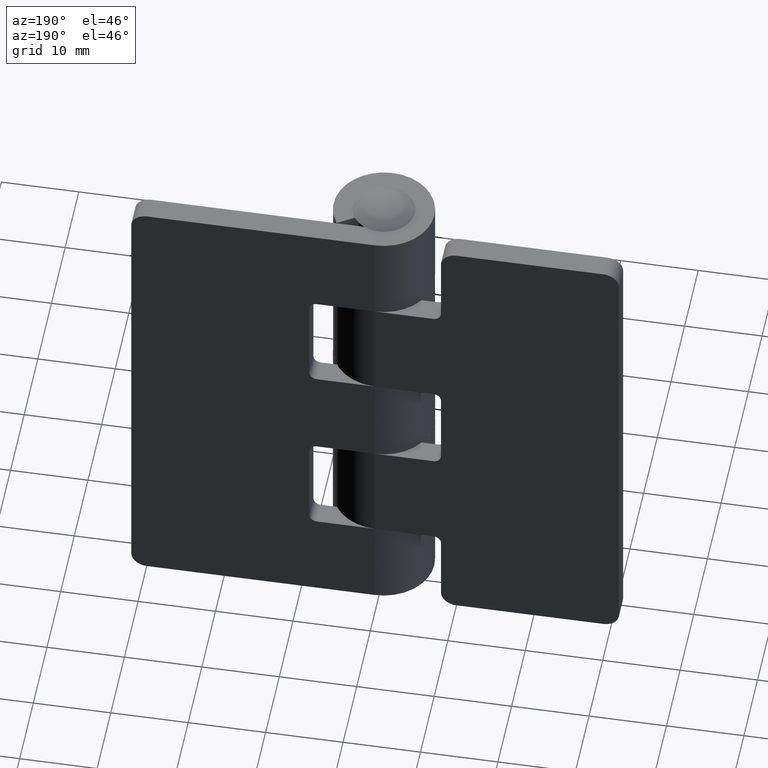
[diagram: clean part render]
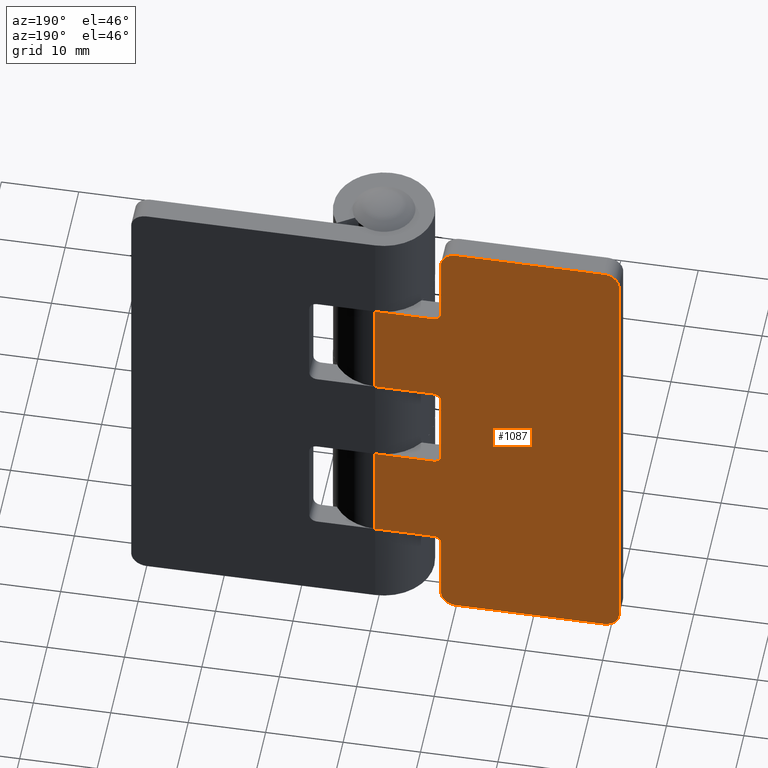
[diagram: same view with one face highlighted and labeled with its STEP entity id]
A machine part, auxiliary view. The second image highlights one B-rep face of the part: STEP entity #1087.
In plain terms, the highlighted face is a freeform B-spline surface patch.
Its self-contained STEP definition (entity closure, byte-faithful):
#77=CARTESIAN_POINT('',(-8.500008000000110,6.499999000000000,37.150001999999887));
#78=VERTEX_POINT('',#77);
#84=CARTESIAN_POINT('',(-7.500008000000110,6.499999000000000,38.150001999999901));
#85=VERTEX_POINT('',#84);
#86=CARTESIAN_POINT('',(-7.500008000000110,6.499999000000000,38.150001999999901));
#87=CARTESIAN_POINT('',(-8.500008000000111,6.499998999999999,38.150001999999894));
#88=CARTESIAN_POINT('',(-8.500008000000111,6.499999000000000,37.150001999999887));
#96=(BOUNDED_CURVE()B_SPLINE_CURVE(2,(#86,#87,#88),.UNSPECIFIED.,.F.,.U.)CURVE()GEOMETRIC_REPRESENTATION_ITEM()QUASI_UNIFORM_CURVE()RATIONAL_B_SPLINE_CURVE((1.0,0.707106781186548,1.0))REPRESENTATION_ITEM(''));
#97=EDGE_CURVE('',#85,#78,#96,.T.);
#138=CARTESIAN_POINT('',(-7.500008000000110,6.499999000000000,25.849999000000000));
#139=VERTEX_POINT('',#138);
#145=CARTESIAN_POINT('',(-8.500008000000110,6.499999000000000,26.849999000000000));
#146=VERTEX_POINT('',#145);
#147=CARTESIAN_POINT('',(-8.500008000000111,6.499999000000000,26.849999000000000));
#148=CARTESIAN_POINT('',(-8.500008000000111,6.499998999999999,25.849998999999993));
#149=CARTESIAN_POINT('',(-7.500008000000110,6.499999000000000,25.849999000000000));
#157=(BOUNDED_CURVE()B_SPLINE_CURVE(2,(#147,#148,#149),.UNSPECIFIED.,.F.,.U.)CURVE()GEOMETRIC_REPRESENTATION_ITEM()QUASI_UNIFORM_CURVE()RATIONAL_B_SPLINE_CURVE((1.0,0.707106781186548,1.0))REPRESENTATION_ITEM(''));
#158=EDGE_CURVE('',#146,#139,#157,.T.);
#199=CARTESIAN_POINT('',(-8.500008000000110,6.499999000000000,11.100006000000000));
#200=VERTEX_POINT('',#199);
#206=CARTESIAN_POINT('',(-7.500008000000110,6.499999000000000,12.100006000000000));
#207=VERTEX_POINT('',#206);
#208=CARTESIAN_POINT('',(-7.500008000000110,6.499999000000000,12.100006000000000));
#209=CARTESIAN_POINT('',(-8.500008000000111,6.499998999999999,12.100006000000000));
#210=CARTESIAN_POINT('',(-8.500008000000111,6.499999000000000,11.100006000000000));
#218=(BOUNDED_CURVE()B_SPLINE_CURVE(2,(#208,#209,#210),.UNSPECIFIED.,.F.,.U.)CURVE()GEOMETRIC_REPRESENTATION_ITEM()QUASI_UNIFORM_CURVE()RATIONAL_B_SPLINE_CURVE((1.0,0.707106781186548,1.0))REPRESENTATION_ITEM(''));
#219=EDGE_CURVE('',#207,#200,#218,.T.);
#260=CARTESIAN_POINT('',(-7.500008000000110,6.499999000000000,51.900002000000100));
#261=VERTEX_POINT('',#260);
#267=CARTESIAN_POINT('',(-8.500008000000110,6.499999000000000,52.900002000000100));
#268=VERTEX_POINT('',#267);
#269=CARTESIAN_POINT('',(-8.500008000000111,6.499999000000000,52.900002000000100));
#270=CARTESIAN_POINT('',(-8.500008000000111,6.499998999999999,51.900002000000093));
#271=CARTESIAN_POINT('',(-7.500008000000110,6.499999000000000,51.900002000000100));
#279=(BOUNDED_CURVE()B_SPLINE_CURVE(2,(#269,#270,#271),.UNSPECIFIED.,.F.,.U.)CURVE()GEOMETRIC_REPRESENTATION_ITEM()QUASI_UNIFORM_CURVE()RATIONAL_B_SPLINE_CURVE((1.0,0.707106781186548,1.0))REPRESENTATION_ITEM(''));
#280=EDGE_CURVE('',#268,#261,#279,.T.);
#321=CARTESIAN_POINT('',(-8.500008000000110,6.499999000000000,62.000008000000101));
#322=VERTEX_POINT('',#321);
#328=CARTESIAN_POINT('',(-10.500008000000101,6.499999000000000,64.000008000000093));
#329=VERTEX_POINT('',#328);
#330=CARTESIAN_POINT('',(-10.500008000000101,6.499999000000000,64.000008000000093));
#331=CARTESIAN_POINT('',(-8.500008000000101,6.499998999999999,64.000008000000093));
#332=CARTESIAN_POINT('',(-8.500008000000101,6.499999000000000,62.000008000000101));
#340=(BOUNDED_CURVE()B_SPLINE_CURVE(2,(#330,#331,#332),.UNSPECIFIED.,.F.,.U.)CURVE()GEOMETRIC_REPRESENTATION_ITEM()QUASI_UNIFORM_CURVE()RATIONAL_B_SPLINE_CURVE((1.0,0.707106781186548,1.0))REPRESENTATION_ITEM(''));
#341=EDGE_CURVE('',#329,#322,#340,.T.);
#382=CARTESIAN_POINT('',(-10.500008000000101,6.499999000000000,0.0));
#383=VERTEX_POINT('',#382);
#389=CARTESIAN_POINT('',(-8.500008000000110,6.499999000000000,2.0));
#390=VERTEX_POINT('',#389);
#391=CARTESIAN_POINT('',(-8.500008000000101,6.499999000000000,2.0));
#392=CARTESIAN_POINT('',(-8.500008000000101,6.499998999999999,0.0));
#393=CARTESIAN_POINT('',(-10.500008000000101,6.499999000000000,0.0));
#401=(BOUNDED_CURVE()B_SPLINE_CURVE(2,(#391,#392,#393),.UNSPECIFIED.,.F.,.U.)CURVE()GEOMETRIC_REPRESENTATION_ITEM()QUASI_UNIFORM_CURVE()RATIONAL_B_SPLINE_CURVE((1.0,0.707106781186548,1.0))REPRESENTATION_ITEM(''));
#402=EDGE_CURVE('',#390,#383,#401,.T.);
#443=CARTESIAN_POINT('',(-29.500008000000001,6.499999000000000,64.000008000000093));
#444=VERTEX_POINT('',#443);
#450=CARTESIAN_POINT('',(-31.500008000000051,6.499999000000000,62.000008000000101));
#451=VERTEX_POINT('',#450);
#452=CARTESIAN_POINT('',(-31.500008000000008,6.499999000000000,62.000008000000101));
#453=CARTESIAN_POINT('',(-31.500008000000001,6.499998999999999,64.000008000000093));
#454=CARTESIAN_POINT('',(-29.500008000000001,6.499999000000000,64.000008000000093));
#462=(BOUNDED_CURVE()B_SPLINE_CURVE(2,(#452,#453,#454),.UNSPECIFIED.,.F.,.U.)CURVE()GEOMETRIC_REPRESENTATION_ITEM()QUASI_UNIFORM_CURVE()RATIONAL_B_SPLINE_CURVE((1.0,0.707106781186548,1.0))REPRESENTATION_ITEM(''));
#463=EDGE_CURVE('',#451,#444,#462,.T.);
#504=CARTESIAN_POINT('',(-31.500008000000051,6.499999000000000,2.0));
#505=VERTEX_POINT('',#504);
#511=CARTESIAN_POINT('',(-29.500008000000001,6.499999000000000,0.0));
#512=VERTEX_POINT('',#511);
#513=CARTESIAN_POINT('',(-29.500008000000001,6.499999000000000,0.0));
#514=CARTESIAN_POINT('',(-31.500008000000001,6.499998999999999,0.0));
#515=CARTESIAN_POINT('',(-31.500008000000008,6.499999000000000,2.0));
#523=(BOUNDED_CURVE()B_SPLINE_CURVE(2,(#513,#514,#515),.UNSPECIFIED.,.F.,.U.)CURVE()GEOMETRIC_REPRESENTATION_ITEM()QUASI_UNIFORM_CURVE()RATIONAL_B_SPLINE_CURVE((1.0,0.707106781186548,1.0))REPRESENTATION_ITEM(''));
#524=EDGE_CURVE('',#512,#505,#523,.T.);
#539=CARTESIAN_POINT('',(0.0,6.499999000000000,25.849999000000000));
#540=VERTEX_POINT('',#539);
#541=CARTESIAN_POINT('',(0.0,6.499999000000000,25.849999000000000));
#542=CARTESIAN_POINT('',(-7.500008000000110,6.499999000000000,25.849999000000000));
#543=QUASI_UNIFORM_CURVE('',1,(#541,#542),.UNSPECIFIED.,.F.,.U.);
#544=EDGE_CURVE('',#540,#139,#543,.T.);
#617=CARTESIAN_POINT('',(0.0,6.499999000000000,38.150001999999901));
#618=VERTEX_POINT('',#617);
#619=CARTESIAN_POINT('',(-7.500008000000110,6.499999000000000,38.150001999999901));
#620=CARTESIAN_POINT('',(0.0,6.499999000000000,38.150001999999901));
#621=QUASI_UNIFORM_CURVE('',1,(#619,#620),.UNSPECIFIED.,.F.,.U.);
#622=EDGE_CURVE('',#85,#618,#621,.T.);
#685=CARTESIAN_POINT('',(-8.500008000000110,6.499999000000000,26.849999000000000));
#686=CARTESIAN_POINT('',(-8.500008000000110,6.499999000000000,37.150001999999887));
#687=QUASI_UNIFORM_CURVE('',1,(#685,#686),.UNSPECIFIED.,.F.,.U.);
#688=EDGE_CURVE('',#146,#78,#687,.T.);
#707=CARTESIAN_POINT('',(0.0,6.499999000000000,12.100006000000000));
#708=VERTEX_POINT('',#707);
#709=CARTESIAN_POINT('',(-7.500008000000110,6.499999000000000,12.100006000000000));
#710=CARTESIAN_POINT('',(0.0,6.499999000000000,12.100006000000000));
#711=QUASI_UNIFORM_CURVE('',1,(#709,#710),.UNSPECIFIED.,.F.,.U.);
#712=EDGE_CURVE('',#207,#708,#711,.T.);
#769=CARTESIAN_POINT('',(-8.500008000000110,6.499999000000000,2.0));
#770=CARTESIAN_POINT('',(-8.500008000000110,6.499999000000000,11.100006000000000));
#771=QUASI_UNIFORM_CURVE('',1,(#769,#770),.UNSPECIFIED.,.F.,.U.);
#772=EDGE_CURVE('',#390,#200,#771,.T.);
#789=CARTESIAN_POINT('',(0.0,6.499999000000000,51.900002000000100));
#790=VERTEX_POINT('',#789);
#791=CARTESIAN_POINT('',(-7.500008000000110,6.499999000000000,51.900002000000100));
#792=CARTESIAN_POINT('',(0.0,6.499999000000000,51.900002000000100));
#793=QUASI_UNIFORM_CURVE('',1,(#791,#792),.UNSPECIFIED.,.F.,.U.);
#794=EDGE_CURVE('',#261,#790,#793,.T.);
#865=CARTESIAN_POINT('',(-8.500008000000110,6.499999000000000,62.000008000000101));
#866=CARTESIAN_POINT('',(-8.500008000000110,6.499999000000000,52.900002000000100));
#867=QUASI_UNIFORM_CURVE('',1,(#865,#866),.UNSPECIFIED.,.F.,.U.);
#868=EDGE_CURVE('',#322,#268,#867,.T.);
#879=CARTESIAN_POINT('',(-31.500008000000051,6.499999000000000,62.000008000000101));
#880=CARTESIAN_POINT('',(-31.500008000000051,6.499999000000000,2.0));
#881=QUASI_UNIFORM_CURVE('',1,(#879,#880),.UNSPECIFIED.,.F.,.U.);
#882=EDGE_CURVE('',#451,#505,#881,.T.);
#905=CARTESIAN_POINT('',(-29.500008000000001,6.499999000000000,64.000008000000093));
#906=CARTESIAN_POINT('',(-10.500008000000101,6.499999000000000,64.000008000000093));
#907=QUASI_UNIFORM_CURVE('',1,(#905,#906),.UNSPECIFIED.,.F.,.U.);
#908=EDGE_CURVE('',#444,#329,#907,.T.);
#919=CARTESIAN_POINT('',(-29.500008000000001,6.499999000000000,0.0));
#920=CARTESIAN_POINT('',(-10.500008000000101,6.499999000000000,0.0));
#921=QUASI_UNIFORM_CURVE('',1,(#919,#920),.UNSPECIFIED.,.F.,.U.);
#922=EDGE_CURVE('',#512,#383,#921,.T.);
#1047=CARTESIAN_POINT('',(0.0,6.499999000000000,51.900002000000100));
#1048=CARTESIAN_POINT('',(0.0,6.499999000000000,38.150001999999901));
#1049=QUASI_UNIFORM_CURVE('',1,(#1047,#1048),.UNSPECIFIED.,.F.,.U.);
#1050=EDGE_CURVE('',#790,#618,#1049,.T.);
#1056=CARTESIAN_POINT('',(-33.073433042847391,6.499999000000000,-3.196800275555570));
#1057=CARTESIAN_POINT('',(-33.073433042847391,6.499999000000000,67.196809992169648));
#1058=CARTESIAN_POINT('',(1.573426169375410,6.499999000000000,-3.196800275555570));
#1059=CARTESIAN_POINT('',(1.573426169375410,6.499999000000000,67.196809992169648));
#1060=B_SPLINE_SURFACE_WITH_KNOTS('',1,1,((#1056,#1058),(#1057,#1059)),.UNSPECIFIED.,.F.,.F.,.U.,(2,2),(2,2),(0.0,70.393610267725222),(0.0,34.646859212222800),.UNSPECIFIED.);
#1061=ORIENTED_EDGE('',*,*,#772,.F.);
#1062=ORIENTED_EDGE('',*,*,#402,.T.);
#1063=ORIENTED_EDGE('',*,*,#922,.F.);
#1064=ORIENTED_EDGE('',*,*,#524,.T.);
#1065=ORIENTED_EDGE('',*,*,#882,.F.);
#1066=ORIENTED_EDGE('',*,*,#463,.T.);
#1067=ORIENTED_EDGE('',*,*,#908,.T.);
#1068=ORIENTED_EDGE('',*,*,#341,.T.);
#1069=ORIENTED_EDGE('',*,*,#868,.T.);
#1070=ORIENTED_EDGE('',*,*,#280,.T.);
#1071=ORIENTED_EDGE('',*,*,#794,.T.);
#1072=ORIENTED_EDGE('',*,*,#1050,.T.);
#1073=ORIENTED_EDGE('',*,*,#622,.F.);
#1074=ORIENTED_EDGE('',*,*,#97,.T.);
#1075=ORIENTED_EDGE('',*,*,#688,.F.);
#1076=ORIENTED_EDGE('',*,*,#158,.T.);
#1077=ORIENTED_EDGE('',*,*,#544,.F.);
#1078=CARTESIAN_POINT('',(0.0,6.499999000000000,25.849999000000000));
#1079=CARTESIAN_POINT('',(0.0,6.499999000000000,12.100006000000000));
#1080=QUASI_UNIFORM_CURVE('',1,(#1078,#1079),.UNSPECIFIED.,.F.,.U.);
#1081=EDGE_CURVE('',#540,#708,#1080,.T.);
#1082=ORIENTED_EDGE('',*,*,#1081,.T.);
#1083=ORIENTED_EDGE('',*,*,#712,.F.);
#1084=ORIENTED_EDGE('',*,*,#219,.T.);
#1085=EDGE_LOOP('',(#1061,#1062,#1063,#1064,#1065,#1066,#1067,#1068,#1069,#1070,#1071,#1072,#1073,#1074,#1075,#1076,#1077,#1082,#1083,#1084));
#1086=FACE_OUTER_BOUND('',#1085,.T.);
#1087=ADVANCED_FACE('',(#1086),#1060,.T.);